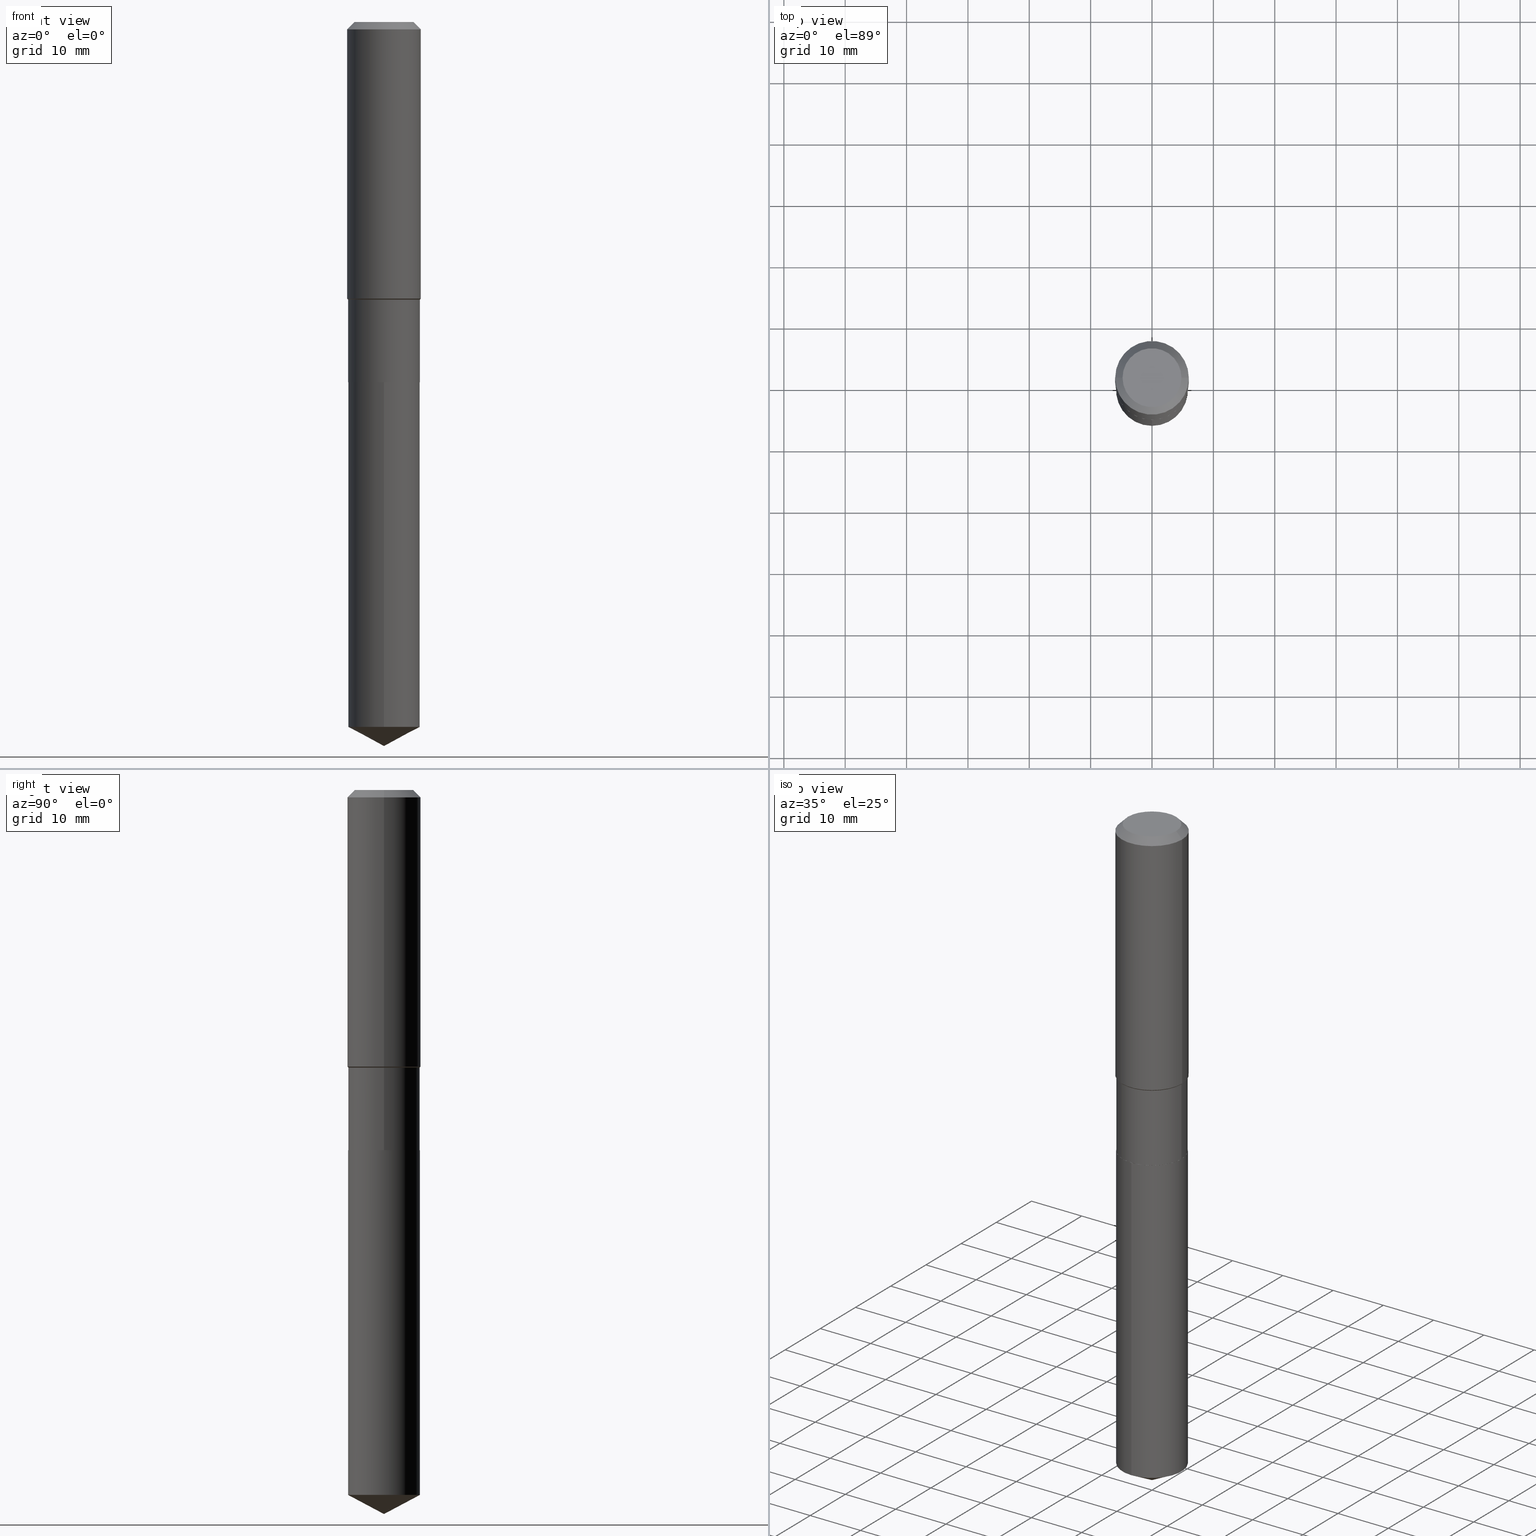
[diagram: canonical four-view strip — front | top / right | iso, engineering-drawing reading convention]
A machine part, canonical four-view strip (front | top / right | iso — engineering-drawing reading convention). The complete STEP part file that produces these views, byte-faithful:
ISO-10303-21;
HEADER;
FILE_DESCRIPTION (( 'STEP AP203' ),
    '1' );
FILE_NAME ('65247.STEP',
    '2024-04-24T21:57:13',
    ( '' ),
    ( '' ),
    'SwSTEP 2.0',
    'SolidWorks 2023',
    '' );
FILE_SCHEMA (( 'CONFIG_CONTROL_DESIGN' ));
ENDSEC;

DATA;
#1 = EDGE_CURVE ( 'NONE', #407, #405, #362, .T. ) ;
#2 = VECTOR ( 'NONE', #368, 39.37007874015748143 ) ;
#3 = EDGE_LOOP ( 'NONE', ( #290, #270, #339, #343 ) ) ;
#4 = CARTESIAN_POINT ( 'NONE',  ( 4.356113584457583395E-29, -6.219375708881294739E-15, -1.781299999999999883 ) ) ;
#5 = DIRECTION ( 'NONE',  ( -2.445468806185136597E-29, 3.491481338843145583E-15, 1.000000000000000000 ) ) ;
#6 = DIRECTION ( 'NONE',  ( -2.445468806185136597E-29, 3.491481338843145583E-15, 1.000000000000000000 ) ) ;
#7 =( NAMED_UNIT ( * ) PLANE_ANGLE_UNIT ( ) SI_UNIT ( $, .RADIAN. ) );
#8 = EDGE_CURVE ( 'NONE', #96, #405, #9, .T. ) ;
#9 = CIRCLE ( 'NONE', #256, 0.2361999999999999933 ) ;
#10 = AXIS2_PLACEMENT_3D ( 'NONE', #191, #167, #415 ) ;
#11 = CARTESIAN_POINT ( 'NONE',  ( 4.356113584457583395E-29, -6.219375708881294739E-15, -1.781299999999999883 ) ) ;
#12 = CARTESIAN_POINT ( 'NONE',  ( -0.2361999999999999933, 1.484438206022545019E-15, -0.04724000000000028177 ) ) ;
#13 = CALENDAR_DATE ( 2024, 24, 4 ) ;
#14 = DIRECTION ( 'NONE',  ( 2.445468806185136597E-29, -3.491481338843145583E-15, -1.000000000000000000 ) ) ;
#15 = CARTESIAN_POINT ( 'NONE',  ( 5.651478411093848855E-29, -8.068813374066508195E-15, -2.310999999999999499 ) ) ;
#16 = ADVANCED_FACE ( 'NONE', ( #42 ), #134, .T. ) ;
#17 = APPROVAL_DATE_TIME ( #435, #77 ) ;
#18 = EDGE_LOOP ( 'NONE', ( #277, #347, #66, #156 ) ) ;
#19 = AXIS2_PLACEMENT_3D ( 'NONE', #165, #391, #283 ) ;
#20 = CARTESIAN_POINT ( 'NONE',  ( -0.2361999999999999933, -1.503554831849177787E-15, -0.04724000000000028177 ) ) ;
#21 = PERSON_AND_ORGANIZATION ( #437, #40 ) ;
#22 = CARTESIAN_POINT ( 'NONE',  ( 1.106141765618037244E-28, -1.579289455312474362E-14, -4.523247317888362318 ) ) ;
#23 = DIRECTION ( 'NONE',  ( -2.445468806185136597E-29, 3.491481338843145583E-15, 1.000000000000000000 ) ) ;
#24 = VERTEX_POINT ( 'NONE', #237 ) ;
#25 = FACE_OUTER_BOUND ( 'NONE', #111, .T. ) ;
#26 = ORIENTED_EDGE ( 'NONE', *, *, #181, .T. ) ;
#27 = CONICAL_SURFACE ( 'NONE', #447, 0.2298000000000000043, 0.7853981633975507526 ) ;
#28 = DIRECTION ( 'NONE',  ( -2.445449566755685960E-29, 3.491508890801159259E-15, 1.000000000000000000 ) ) ;
#29 = ORIENTED_EDGE ( 'NONE', *, *, #313, .T. ) ;
#30 = DIRECTION ( 'NONE',  ( 1.000000000000000000, -6.982962677686267499E-15, 0.000000000000000000 ) ) ;
#31 = EDGE_CURVE ( 'NONE', #141, #373, #108, .T. ) ;
#32 = ORIENTED_EDGE ( 'NONE', *, *, #53, .T. ) ;
#33 = COORDINATED_UNIVERSAL_TIME_OFFSET ( 5, 0, .BEHIND. ) ;
#34 = CIRCLE ( 'NONE', #319, 0.2302999999999999214 ) ;
#35 = VECTOR ( 'NONE', #67, 39.37007874015748143 ) ;
#36 = MECHANICAL_CONTEXT ( 'NONE', #70, 'mechanical' ) ;
#37 = CARTESIAN_POINT ( 'NONE',  ( 5.650255676690757174E-29, -8.067067633397085902E-15, -2.310499999999999776 ) ) ;
#38 = APPROVAL ( #202, 'UNSPECIFIED' ) ;
#39 = ORIENTED_EDGE ( 'NONE', *, *, #411, .F. ) ;
#40 = ORGANIZATION ( 'UNSPECIFIED', 'UNSPECIFIED', '' ) ;
#41 = VERTEX_POINT ( 'NONE', #266 ) ;
#42 = FACE_OUTER_BOUND ( 'NONE', #107, .T. ) ;
#43 = FACE_OUTER_BOUND ( 'NONE', #150, .T. ) ;
#44 = EDGE_CURVE ( 'NONE', #220, #373, #112, .T. ) ;
#45 = CARTESIAN_POINT ( 'NONE',  ( 4.356113584457583395E-29, -6.219375708881294739E-15, -1.781299999999999883 ) ) ;
#46 = PERSON_AND_ORGANIZATION ( #437, #40 ) ;
#47 = CARTESIAN_POINT ( 'NONE',  ( 1.636379920455566968E-15, 0.2302999999999919278, -2.311000000000000387 ) ) ;
#48 = MANIFOLD_SOLID_BREP ( 'Body-Move/Copy2[2]', #50 ) ;
#49 = SECURITY_CLASSIFICATION_LEVEL ( 'unclassified' ) ;
#50 = CLOSED_SHELL ( 'NONE', ( #399, #162, #230, #160, #73, #282, #85, #195, #109, #217, #103, #340 ) ) ;
#51 = DIRECTION ( 'NONE',  ( -2.445468806185136597E-29, 3.491481338843145583E-15, 1.000000000000000000 ) ) ;
#52 = DIRECTION ( 'NONE',  ( -2.445468806185136597E-29, 3.491481338843145583E-15, 1.000000000000000000 ) ) ;
#53 = EDGE_CURVE ( 'NONE', #407, #79, #157, .T. ) ;
#54 = CARTESIAN_POINT ( 'NONE',  ( 0.1889600000000000168, -1.540873453589747738E-15, 3.855188123725863225E-18 ) ) ;
#55 = COORDINATED_UNIVERSAL_TIME_OFFSET ( 5, 0, .BEHIND. ) ;
#56 = CARTESIAN_POINT ( 'NONE',  ( 4.341685318501090243E-29, -6.198775968982119419E-15, -1.775399999999999645 ) ) ;
#57 = CYLINDRICAL_SURFACE ( 'NONE', #192, 0.2302999999999999770 ) ;
#58 = VECTOR ( 'NONE', #369, 39.37007874015748143 ) ;
#59 = PERSON_AND_ORGANIZATION ( #437, #40 ) ;
#60 = CARTESIAN_POINT ( 'NONE',  ( 0.2302999999999999770, -1.608176304671147069E-15, 1.122983511465803858E-29 ) ) ;
#61 = ORIENTED_EDGE ( 'NONE', *, *, #464, .T. ) ;
#62 = ORIENTED_EDGE ( 'NONE', *, *, #302, .F. ) ;
#63 = EDGE_CURVE ( 'NONE', #373, #220, #452, .T. ) ;
#64 = EDGE_LOOP ( 'NONE', ( #262, #98 ) ) ;
#65 = CARTESIAN_POINT ( 'NONE',  ( 5.651478411093848855E-29, -8.068813374066508195E-15, -2.310999999999999499 ) ) ;
#66 = ORIENTED_EDGE ( 'NONE', *, *, #8, .F. ) ;
#67 = DIRECTION ( 'NONE',  ( 0.7071067811866199593, -2.468850131083015945E-15, 0.7071067811864750752 ) ) ;
#68 = CIRCLE ( 'NONE', #102, 0.2298000000000000043 ) ;
#69 = EDGE_CURVE ( 'NONE', #403, #83, #34, .T. ) ;
#70 = APPLICATION_CONTEXT ( 'configuration controlled 3d designs of mechanical parts and assemblies' ) ;
#71 = DIRECTION ( 'NONE',  ( -2.445468806185136597E-29, 3.491481338843145583E-15, 1.000000000000000000 ) ) ;
#72 = CARTESIAN_POINT ( 'NONE',  ( 5.651478411093848855E-29, -8.068813374066508195E-15, -2.310999999999999499 ) ) ;
#73 = ADVANCED_FACE ( 'NONE', ( #238 ), #430, .T. ) ;
#74 = VECTOR ( 'NONE', #310, 39.37007874015748143 ) ;
#75 = LOCAL_TIME ( 17, 57, 13.00000000000000000, #115 ) ;
#76 = LINE ( 'NONE', #236, #205 ) ;
#77 = APPROVAL ( #133, 'UNSPECIFIED' ) ;
#78 = ORIENTED_EDGE ( 'NONE', *, *, #207, .F. ) ;
#79 = VERTEX_POINT ( 'NONE', #54 ) ;
#80 = DIRECTION ( 'NONE',  ( -2.445468806185136597E-29, 3.491481338843145583E-15, 1.000000000000000000 ) ) ;
#81 = VECTOR ( 'NONE', #358, 39.37007874015748143 ) ;
#82 = VECTOR ( 'NONE', #320, 39.37007874015748143 ) ;
#83 = VERTEX_POINT ( 'NONE', #462 ) ;
#84 = PRODUCT_DEFINITION_FORMATION_WITH_SPECIFIED_SOURCE ( 'ANY', '', #321, .NOT_KNOWN. ) ;
#85 = ADVANCED_FACE ( 'NONE', ( #136 ), #275, .T. ) ;
#86 = DIRECTION ( 'NONE',  ( -1.000000000000000000, 6.982962677686266711E-15, 0.000000000000000000 ) ) ;
#87 = LINE ( 'NONE', #161, #74 ) ;
#88 = DIRECTION ( 'NONE',  ( -2.445468806185136597E-29, 3.491481338843145583E-15, 1.000000000000000000 ) ) ;
#89 = PERSON_AND_ORGANIZATION ( #437, #40 ) ;
#90 = DIRECTION ( 'NONE',  ( 1.000000000000000000, -6.982962677686265922E-15, 4.876176775795935793E-29 ) ) ;
#91 = EDGE_CURVE ( 'NONE', #222, #83, #247, .T. ) ;
#92 = APPROVAL_ROLE ( '' ) ;
#93 = AXIS2_PLACEMENT_3D ( 'NONE', #338, #255, #305 ) ;
#94 = DIRECTION ( 'NONE',  ( -6.982962677686265922E-15, -1.000000000000000000, 3.541896320645553375E-15 ) ) ;
#95 = DIRECTION ( 'NONE',  ( -0.7071067811865453523, 2.468850131082234184E-15, -0.7071067811865496822 ) ) ;
#96 = VERTEX_POINT ( 'NONE', #457 ) ;
#97 = FACE_OUTER_BOUND ( 'NONE', #64, .T. ) ;
#98 = ORIENTED_EDGE ( 'NONE', *, *, #350, .F. ) ;
#99 = DIRECTION ( 'NONE',  ( -2.445468806185136597E-29, 3.491481338843145583E-15, 1.000000000000000000 ) ) ;
#100 = APPROVAL_DATE_TIME ( #175, #126 ) ;
#101 = LINE ( 'NONE', #221, #58 ) ;
#102 = AXIS2_PLACEMENT_3D ( 'NONE', #484, #409, #30 ) ;
#103 = ADVANCED_FACE ( 'NONE', ( #97 ), #278, .F. ) ;
#104 = CARTESIAN_POINT ( 'NONE',  ( 1.636379920455621202E-15, 0.2302999999999842118, -4.523247317888362318 ) ) ;
#105 = CC_DESIGN_PERSON_AND_ORGANIZATION_ASSIGNMENT ( #170, #125, ( #321 ) ) ;
#106 = CARTESIAN_POINT ( 'NONE',  ( 0.000000000000000000, 0.000000000000000000, 0.000000000000000000 ) ) ;
#107 = EDGE_LOOP ( 'NONE', ( #398, #239, #370, #198 ) ) ;
#108 = LINE ( 'NONE', #114, #298 ) ;
#109 = ADVANCED_FACE ( 'NONE', ( #123 ), #388, .T. ) ;
#110 = CARTESIAN_POINT ( 'NONE',  ( 5.651478411093848855E-29, -8.068813374066508195E-15, -2.310999999999999499 ) ) ;
#111 = EDGE_LOOP ( 'NONE', ( #301, #164, #336, #367 ) ) ;
#112 = CIRCLE ( 'NONE', #240, 0.2303000000000000047 ) ;
#113 = AXIS2_PLACEMENT_3D ( 'NONE', #130, #14, #86 ) ;
#114 = CARTESIAN_POINT ( 'NONE',  ( -1.608176304671090468E-15, -0.2303000000000080538, -2.310999999999998611 ) ) ;
#115 = COORDINATED_UNIVERSAL_TIME_OFFSET ( 5, 0, .BEHIND. ) ;
#116 = DIRECTION ( 'NONE',  ( -2.445449566755685960E-29, 3.491508890801159259E-15, 1.000000000000000000 ) ) ;
#117 = EDGE_CURVE ( 'NONE', #410, #222, #306, .T. ) ;
#118 = VECTOR ( 'NONE', #390, 39.37007874015748143 ) ;
#119 = VECTOR ( 'NONE', #318, 39.37007874015747433 ) ;
#120 = LOCAL_TIME ( 17, 57, 13.00000000000000000, #33 ) ;
#121 = ORIENTED_EDGE ( 'NONE', *, *, #31, .F. ) ;
#122 = EDGE_CURVE ( 'NONE', #79, #96, #386, .T. ) ;
#123 = FACE_OUTER_BOUND ( 'NONE', #149, .T. ) ;
#124 = CLOSED_SHELL ( 'NONE', ( #219, #131, #424, #16, #449 ) ) ;
#125 = PERSON_AND_ORGANIZATION_ROLE ( 'design_owner' ) ;
#126 = APPROVAL ( #471, 'UNSPECIFIED' ) ;
#127 = EDGE_LOOP ( 'NONE', ( #417, #61, #227, #135 ) ) ;
#128 = DIRECTION ( 'NONE',  ( 1.000000000000000000, -6.982962677686268288E-15, 0.000000000000000000 ) ) ;
#129 = APPROVAL_ROLE ( '' ) ;
#130 = CARTESIAN_POINT ( 'NONE',  ( 1.155239464041865506E-30, -1.649375784469511859E-16, -0.04724000000000028177 ) ) ;
#131 = ADVANCED_FACE ( 'NONE', ( #43 ), #311, .T. ) ;
#132 = DIMENSIONAL_EXPONENTS ( 1.000000000000000000, 0.000000000000000000, 0.000000000000000000, 0.000000000000000000, 0.000000000000000000, 0.000000000000000000, 0.000000000000000000 ) ;
#133 = APPROVAL_STATUS ( 'not_yet_approved' ) ;
#134 = CYLINDRICAL_SURFACE ( 'NONE', #289, 0.2303000000000000047 ) ;
#135 = ORIENTED_EDGE ( 'NONE', *, *, #379, .F. ) ;
#136 = FACE_OUTER_BOUND ( 'NONE', #3, .T. ) ;
#137 = VECTOR ( 'NONE', #354, 39.37007874015748143 ) ;
#138 = AXIS2_PLACEMENT_3D ( 'NONE', #210, #80, #199 ) ;
#139 = VECTOR ( 'NONE', #337, 39.37007874015748854 ) ;
#140 = DIRECTION ( 'NONE',  ( -6.982962677686265922E-15, -1.000000000000000000, 3.558638289619100968E-15 ) ) ;
#141 = VERTEX_POINT ( 'NONE', #243 ) ;
#142 = DIRECTION ( 'NONE',  ( -2.445468806185136597E-29, 3.491481338843145583E-15, 1.000000000000000000 ) ) ;
#143 = ORIENTED_EDGE ( 'NONE', *, *, #487, .F. ) ;
#144 = EDGE_CURVE ( 'NONE', #264, #220, #322, .T. ) ;
#145 = DIRECTION ( 'NONE',  ( -2.445468806185136597E-29, 3.491481338843145583E-15, 1.000000000000000000 ) ) ;
#146 = UNCERTAINTY_MEASURE_WITH_UNIT (LENGTH_MEASURE( 1.000000000000000082E-05 ), #406, 'distance_accuracy_value', 'NONE');
#147 = CARTESIAN_POINT ( 'NONE',  ( -9.427742298522546243E-47, 1.346031739168365344E-32, 3.855188123715862256E-18 ) ) ;
#148 = CIRCLE ( 'NONE', #383, 0.2298000000000000043 ) ;
#149 = EDGE_LOOP ( 'NONE', ( #489, #250, #281, #381 ) ) ;
#150 = EDGE_LOOP ( 'NONE', ( #78, #159, #296 ) ) ;
#151 = DIRECTION ( 'NONE',  ( 1.000000000000000000, -6.982962677686267499E-15, 0.000000000000000000 ) ) ;
#152 = LINE ( 'NONE', #474, #139 ) ;
#153 = ORIENTED_EDGE ( 'NONE', *, *, #252, .F. ) ;
#154 = ORIENTED_EDGE ( 'NONE', *, *, #267, .T. ) ;
#155 = CARTESIAN_POINT ( 'NONE',  ( 0.2362000000000001043, -1.649375784469496920E-15, 1.151752954443000508E-29 ) ) ;
#156 = ORIENTED_EDGE ( 'NONE', *, *, #416, .F. ) ;
#157 = CIRCLE ( 'NONE', #138, 0.1889600000000000168 ) ;
#158 = APPROVAL_PERSON_ORGANIZATION ( #46, #38, #129 ) ;
#159 = ORIENTED_EDGE ( 'NONE', *, *, #302, .T. ) ;
#160 = ADVANCED_FACE ( 'NONE', ( #203 ), #418, .T. ) ;
#161 = CARTESIAN_POINT ( 'NONE',  ( 0.2302999999999999214, -7.827552013552441413E-15, -1.781299999999999883 ) ) ;
#162 = ADVANCED_FACE ( 'NONE', ( #465 ), #224, .T. ) ;
#163 = DIRECTION ( 'NONE',  ( -2.445449566755685960E-29, 3.491508890801159259E-15, 1.000000000000000000 ) ) ;
#164 = ORIENTED_EDGE ( 'NONE', *, *, #350, .T. ) ;
#165 = CARTESIAN_POINT ( 'NONE',  ( 1.155239464041865506E-30, -1.649375784469511859E-16, -0.04724000000000028177 ) ) ;
#166 = MANIFOLD_SOLID_BREP ( 'Body-Move/Copy2[1]', #124 ) ;
#167 = DIRECTION ( 'NONE',  ( 2.445449566755685400E-29, -3.491508890801159654E-15, -1.000000000000000000 ) ) ;
#168 = LINE ( 'NONE', #324, #119 ) ;
#169 = AXIS2_PLACEMENT_3D ( 'NONE', #443, #185, #436 ) ;
#170 = PERSON_AND_ORGANIZATION ( #437, #40 ) ;
#171 = DIRECTION ( 'NONE',  ( 1.000000000000000000, -6.982962677686268288E-15, 0.000000000000000000 ) ) ;
#172 = CARTESIAN_POINT ( 'NONE',  ( 1.155239464041865506E-30, -1.649375784469511859E-16, -0.04724000000000028177 ) ) ;
#173 = DIRECTION ( 'NONE',  ( -1.000000000000000000, 6.982962677686265922E-15, -4.876176775795935793E-29 ) ) ;
#174 = DIRECTION ( 'NONE',  ( -2.445449566755685960E-29, 3.491508890801159259E-15, 1.000000000000000000 ) ) ;
#175 = DATE_AND_TIME ( #13, #187 ) ;
#176 = CARTESIAN_POINT ( 'NONE',  ( 5.650255676690757174E-29, -8.067067633397085902E-15, -2.310499999999999776 ) ) ;
#177 = COORDINATED_UNIVERSAL_TIME_OFFSET ( 5, 0, .BEHIND. ) ;
#178 = AXIS2_PLACEMENT_3D ( 'NONE', #4, #253, #128 ) ;
#179 = CIRCLE ( 'NONE', #341, 0.2303000000000000047 ) ;
#180 = CYLINDRICAL_SURFACE ( 'NONE', #279, 0.2362000000000001043 ) ;
#181 = EDGE_CURVE ( 'NONE', #272, #349, #427, .T. ) ;
#182 = DIRECTION ( 'NONE',  ( -2.445468806185136877E-29, 3.491481338843145188E-15, 1.000000000000000000 ) ) ;
#183 = CARTESIAN_POINT ( 'NONE',  ( 0.000000000000000000, 0.000000000000000000, 0.000000000000000000 ) ) ;
#184 = DIRECTION ( 'NONE',  ( -6.982962677686265922E-15, -1.000000000000000000, 2.372425526412734110E-15 ) ) ;
#185 = DIRECTION ( 'NONE',  ( -2.445468806185136597E-29, 3.491481338843145583E-15, 1.000000000000000000 ) ) ;
#186 = CIRCLE ( 'NONE', #460, 0.2361999999999999933 ) ;
#187 = LOCAL_TIME ( 17, 57, 13.00000000000000000, #177 ) ;
#188 = CARTESIAN_POINT ( 'NONE',  ( -1.608176304671090468E-15, -0.2303000000000080538, -2.310999999999998611 ) ) ;
#189 = ORIENTED_EDGE ( 'NONE', *, *, #416, .T. ) ;
#190 = DIRECTION ( 'NONE',  ( 1.000000000000000000, -6.982962677686269866E-15, 0.000000000000000000 ) ) ;
#191 = CARTESIAN_POINT ( 'NONE',  ( 5.651478411093848855E-29, -8.068813374066508195E-15, -2.310999999999999499 ) ) ;
#192 = AXIS2_PLACEMENT_3D ( 'NONE', #106, #142, #265 ) ;
#193 = PRODUCT_RELATED_PRODUCT_CATEGORY ( 'detail', '', ( #321 ) ) ;
#194 =( NAMED_UNIT ( * ) SI_UNIT ( $, .STERADIAN. ) SOLID_ANGLE_UNIT ( ) );
#195 = ADVANCED_FACE ( 'NONE', ( #384 ), #351, .T. ) ;
#196 = AXIS2_PLACEMENT_3D ( 'NONE', #11, #419, #171 ) ;
#197 = CC_DESIGN_APPROVAL ( #77, ( #84 ) ) ;
#198 = ORIENTED_EDGE ( 'NONE', *, *, #44, .F. ) ;
#199 = DIRECTION ( 'NONE',  ( 1.000000000000000000, -6.982962677686266711E-15, 4.876185090822587894E-29 ) ) ;
#200 = CC_DESIGN_PERSON_AND_ORGANIZATION_ASSIGNMENT ( #392, #425, ( #84 ) ) ;
#201 = CARTESIAN_POINT ( 'NONE',  ( 5.651478411093848855E-29, -8.068813374066508195E-15, -2.310999999999999499 ) ) ;
#202 = APPROVAL_STATUS ( 'not_yet_approved' ) ;
#203 = FACE_OUTER_BOUND ( 'NONE', #269, .T. ) ;
#204 = AXIS2_PLACEMENT_3D ( 'NONE', #183, #5, #421 ) ;
#205 = VECTOR ( 'NONE', #280, 39.37007874015748143 ) ;
#206 = DATE_AND_TIME ( #254, #365 ) ;
#207 = EDGE_CURVE ( 'NONE', #360, #141, #168, .T. ) ;
#208 = CC_DESIGN_SECURITY_CLASSIFICATION ( #328, ( #84 ) ) ;
#209 = PLANE ( 'NONE',  #263 ) ;
#210 = CARTESIAN_POINT ( 'NONE',  ( -9.427742298522546243E-47, 1.346031739168365344E-32, 3.855188123715862256E-18 ) ) ;
#211 = DIRECTION ( 'NONE',  ( 2.438088387897960049E-29, -3.491481338843145188E-15, -1.000000000000000000 ) ) ;
#212 = ORIENTED_EDGE ( 'NONE', *, *, #8, .T. ) ;
#213 = DIRECTION ( 'NONE',  ( 1.000000000000000000, -6.982962677686266711E-15, 0.000000000000000000 ) ) ;
#214 = CALENDAR_DATE ( 2024, 24, 4 ) ;
#215 = CONICAL_SURFACE ( 'NONE', #438, 74.04434902938369589, 1.082104136236487379 ) ;
#216 = LINE ( 'NONE', #400, #35 ) ;
#217 = ADVANCED_FACE ( 'NONE', ( #249 ), #209, .F. ) ;
#218 = DIRECTION ( 'NONE',  ( -6.982962677686265922E-15, -1.000000000000000000, 2.372425526412734110E-15 ) ) ;
#219 = ADVANCED_FACE ( 'NONE', ( #361 ), #326, .T. ) ;
#220 = VERTEX_POINT ( 'NONE', #292 ) ;
#221 = CARTESIAN_POINT ( 'NONE',  ( -0.2302999999999999214, -4.582995788425784372E-15, -1.781299999999999883 ) ) ;
#222 = VERTEX_POINT ( 'NONE', #332 ) ;
#223 = DIRECTION ( 'NONE',  ( 1.000000000000000000, -6.982962677686266711E-15, 4.876185090822587894E-29 ) ) ;
#224 = CONICAL_SURFACE ( 'NONE', #113, 0.2361999999999999933, 0.7853981633974452814 ) ;
#225 = DIRECTION ( 'NONE',  ( -2.445468806185136597E-29, 3.491481338843145583E-15, 1.000000000000000000 ) ) ;
#226 = DATE_AND_TIME ( #284, #75 ) ;
#227 = ORIENTED_EDGE ( 'NONE', *, *, #276, .T. ) ;
#228 = PRODUCT_DEFINITION_SHAPE ( 'NONE', 'NONE',  #286 ) ;
#229 = DIRECTION ( 'NONE',  ( 0.000000000000000000, 0.000000000000000000, 1.000000000000000000 ) ) ;
#230 = ADVANCED_FACE ( 'NONE', ( #303 ), #180, .T. ) ;
#231 = DIRECTION ( 'NONE',  ( -6.982962677686265922E-15, -1.000000000000000000, 3.558638289619100968E-15 ) ) ;
#232 = LENGTH_MEASURE_WITH_UNIT ( LENGTH_MEASURE( 0.02539999999999999897 ), #450 );
#233 = CARTESIAN_POINT ( 'NONE',  ( 5.651478411093848855E-29, -8.068813374066508195E-15, -2.310999999999999499 ) ) ;
#234 = ORIENTED_EDGE ( 'NONE', *, *, #117, .F. ) ;
#235 = ORIENTED_EDGE ( 'NONE', *, *, #1, .F. ) ;
#236 = CARTESIAN_POINT ( 'NONE',  ( -0.2362000000000001043, 1.678301941865357380E-15, -1.161852468318209317E-29 ) ) ;
#237 = CARTESIAN_POINT ( 'NONE',  ( 0.2298000000000000043, -9.673498197398812651E-15, -2.310999999999999499 ) ) ;
#238 = FACE_OUTER_BOUND ( 'NONE', #330, .T. ) ;
#239 = ORIENTED_EDGE ( 'NONE', *, *, #333, .T. ) ;
#240 = AXIS2_PLACEMENT_3D ( 'NONE', #72, #352, #323 ) ;
#241 = CIRCLE ( 'NONE', #453, 0.1889600000000000168 ) ;
#242 = APPROVAL_PERSON_ORGANIZATION ( #432, #77, #287 ) ;
#243 = CARTESIAN_POINT ( 'NONE',  ( -1.608176304671036628E-15, -0.2303000000000157976, -4.523247317888361430 ) ) ;
#244 = DIRECTION ( 'NONE',  ( -6.982962677686265922E-15, -1.000000000000000000, 3.541896320645553375E-15 ) ) ;
#245 = DIRECTION ( 'NONE',  ( -2.438088387897960049E-29, 3.491481338843145188E-15, 1.000000000000000000 ) ) ;
#246 = PERSON_AND_ORGANIZATION_ROLE ( 'classification_officer' ) ;
#247 = LINE ( 'NONE', #431, #137 ) ;
#248 = AXIS2_PLACEMENT_3D ( 'NONE', #22, #28, #184 ) ;
#249 = FACE_OUTER_BOUND ( 'NONE', #378, .T. ) ;
#250 = ORIENTED_EDGE ( 'NONE', *, *, #53, .F. ) ;
#251 = DATE_TIME_ROLE ( 'classification_date' ) ;
#252 = EDGE_CURVE ( 'NONE', #349, #272, #389, .T. ) ;
#253 = DIRECTION ( 'NONE',  ( -2.445468806185136597E-29, 3.491481338843145583E-15, 1.000000000000000000 ) ) ;
#254 = CALENDAR_DATE ( 2024, 24, 4 ) ;
#255 = DIRECTION ( 'NONE',  ( -2.445468806185136597E-29, 3.491481338843145583E-15, 1.000000000000000000 ) ) ;
#256 = AXIS2_PLACEMENT_3D ( 'NONE', #172, #52, #355 ) ;
#257 = CIRCLE ( 'NONE', #248, 0.2303000000000000047 ) ;
#258 = CARTESIAN_POINT ( 'NONE',  ( -0.2362000000000002153, -4.520474027116760658E-15, -1.775399999999999645 ) ) ;
#259 = CARTESIAN_POINT ( 'NONE',  ( -0.2298000000000000043, -6.435986167289797937E-15, -2.310999999999999499 ) ) ;
#260 = EDGE_LOOP ( 'NONE', ( #39, #26, #189, #385 ) ) ;
#261 = CARTESIAN_POINT ( 'NONE',  ( 0.000000000000000000, 0.000000000000000000, 0.000000000000000000 ) ) ;
#262 = ORIENTED_EDGE ( 'NONE', *, *, #455, .F. ) ;
#263 = AXIS2_PLACEMENT_3D ( 'NONE', #466, #211, #173 ) ;
#264 = VERTEX_POINT ( 'NONE', #104 ) ;
#265 = DIRECTION ( 'NONE',  ( 1.000000000000000000, -6.982962677686266711E-15, 4.876176775795935793E-29 ) ) ;
#266 = CARTESIAN_POINT ( 'NONE',  ( -0.2298000000000000043, -6.433336940115686736E-15, -2.310999999999999499 ) ) ;
#267 = EDGE_CURVE ( 'NONE', #83, #272, #101, .T. ) ;
#268 = PERSON_AND_ORGANIZATION_ROLE ( 'creator' ) ;
#269 = EDGE_LOOP ( 'NONE', ( #344, #154, #153, #143 ) ) ;
#270 = ORIENTED_EDGE ( 'NONE', *, *, #379, .T. ) ;
#271 = FACE_OUTER_BOUND ( 'NONE', #446, .T. ) ;
#272 = VERTEX_POINT ( 'NONE', #258 ) ;
#273 = CC_DESIGN_DATE_AND_TIME_ASSIGNMENT ( #206, #251, ( #328 ) ) ;
#274 = LINE ( 'NONE', #155, #82 ) ;
#275 = CONICAL_SURFACE ( 'NONE', #178, 0.2302999999999999214, 0.7853981633974425058 ) ;
#276 = EDGE_CURVE ( 'NONE', #410, #403, #396, .T. ) ;
#277 = ORIENTED_EDGE ( 'NONE', *, *, #252, .T. ) ;
#278 = PLANE ( 'NONE',  #348 ) ;
#279 = AXIS2_PLACEMENT_3D ( 'NONE', #261, #329, #300 ) ;
#280 = DIRECTION ( 'NONE',  ( -2.445468806185136877E-29, 3.491481338843145188E-15, 1.000000000000000000 ) ) ;
#281 = ORIENTED_EDGE ( 'NONE', *, *, #1, .T. ) ;
#282 = ADVANCED_FACE ( 'NONE', ( #473 ), #57, .T. ) ;
#283 = DIRECTION ( 'NONE',  ( -1.000000000000000000, 6.982962677686266711E-15, 0.000000000000000000 ) ) ;
#284 = CALENDAR_DATE ( 2024, 24, 4 ) ;
#285 = CARTESIAN_POINT ( 'NONE',  ( 0.000000000000000000, 0.000000000000000000, 0.000000000000000000 ) ) ;
#286 = PRODUCT_DEFINITION ( 'UNKNOWN', '', #84, #444 ) ;
#287 = APPROVAL_ROLE ( '' ) ;
#288 = DIRECTION ( 'NONE',  ( 1.000000000000000000, -6.982962677686269866E-15, 0.000000000000000000 ) ) ;
#289 = AXIS2_PLACEMENT_3D ( 'NONE', #472, #163, #467 ) ;
#290 = ORIENTED_EDGE ( 'NONE', *, *, #267, .F. ) ;
#291 = EDGE_CURVE ( 'NONE', #141, #264, #179, .T. ) ;
#292 = CARTESIAN_POINT ( 'NONE',  ( 1.636379920455621399E-15, 0.2302999999999919001, -2.311000000000000387 ) ) ;
#293 = CC_DESIGN_DATE_AND_TIME_ASSIGNMENT ( #359, #331, ( #286 ) ) ;
#294 = DIRECTION ( 'NONE',  ( 1.000000000000000000, -6.982962677686266711E-15, 0.000000000000000000 ) ) ;
#295 = DIRECTION ( 'NONE',  ( 1.000000000000000000, -6.982962677686267499E-15, 0.000000000000000000 ) ) ;
#296 = ORIENTED_EDGE ( 'NONE', *, *, #291, .F. ) ;
#297 = COORDINATED_UNIVERSAL_TIME_OFFSET ( 5, 0, .BEHIND. ) ;
#298 = VECTOR ( 'NONE', #408, 39.37007874015748143 ) ;
#299 = AXIS2_PLACEMENT_3D ( 'NONE', #37, #342, #190 ) ;
#300 = DIRECTION ( 'NONE',  ( 1.000000000000000000, -6.982962677686266711E-15, 4.876176775795935793E-29 ) ) ;
#301 = ORIENTED_EDGE ( 'NONE', *, *, #313, .F. ) ;
#302 = EDGE_CURVE ( 'NONE', #360, #264, #152, .T. ) ;
#303 = FACE_OUTER_BOUND ( 'NONE', #18, .T. ) ;
#304 = CC_DESIGN_PERSON_AND_ORGANIZATION_ASSIGNMENT ( #59, #246, ( #328 ) ) ;
#305 = DIRECTION ( 'NONE',  ( 1.000000000000000000, -6.982962677686268288E-15, 0.000000000000000000 ) ) ;
#306 = CIRCLE ( 'NONE', #413, 0.2303000000000000047 ) ;
#307 = ORIENTED_EDGE ( 'NONE', *, *, #63, .T. ) ;
#308 = DIRECTION ( 'NONE',  ( 1.000000000000000000, -6.982962677686268288E-15, 0.000000000000000000 ) ) ;
#309 = ORIENTED_EDGE ( 'NONE', *, *, #91, .T. ) ;
#310 = DIRECTION ( 'NONE',  ( 0.7071067811865434649, -2.468850131082213673E-15, 0.7071067811865516806 ) ) ;
#311 = CONICAL_SURFACE ( 'NONE', #327, 74.04434902938369589, 1.082104136236487379 ) ;
#312 = AXIS2_PLACEMENT_3D ( 'NONE', #15, #469, #140 ) ;
#313 = EDGE_CURVE ( 'NONE', #41, #222, #439, .T. ) ;
#314 = ORIENTED_EDGE ( 'NONE', *, *, #207, .T. ) ;
#315 = ORIENTED_EDGE ( 'NONE', *, *, #291, .T. ) ;
#316 = CARTESIAN_POINT ( 'NONE',  ( 0.2361999999999999933, -1.785387205520586782E-15, -0.04724000000000028177 ) ) ;
#317 = EDGE_CURVE ( 'NONE', #405, #96, #186, .T. ) ;
#318 = DIRECTION ( 'NONE',  ( -6.165590087286837607E-15, -0.8829475928589267664, 0.4694715627858912499 ) ) ;
#319 = AXIS2_PLACEMENT_3D ( 'NONE', #45, #225, #308 ) ;
#320 = DIRECTION ( 'NONE',  ( -2.445468806185136877E-29, 3.491481338843145188E-15, 1.000000000000000000 ) ) ;
#321 = PRODUCT ( '65247', '65247', '', ( #36 ) ) ;
#322 = LINE ( 'NONE', #47, #81 ) ;
#323 = DIRECTION ( 'NONE',  ( -6.982962677686265922E-15, -1.000000000000000000, 3.558638289619100968E-15 ) ) ;
#324 = CARTESIAN_POINT ( 'NONE',  ( 1.136082505227688909E-28, -1.622050285399494493E-14, -4.645699999999999719 ) ) ;
#325 = ORIENTED_EDGE ( 'NONE', *, *, #63, .F. ) ;
#326 = CYLINDRICAL_SURFACE ( 'NONE', #312, 0.2303000000000000047 ) ;
#327 = AXIS2_PLACEMENT_3D ( 'NONE', #387, #426, #94 ) ;
#328 = SECURITY_CLASSIFICATION ( '', '', #49 ) ;
#329 = DIRECTION ( 'NONE',  ( -2.445468806185136597E-29, 3.491481338843145583E-15, 1.000000000000000000 ) ) ;
#330 = EDGE_LOOP ( 'NONE', ( #442, #309, #483, #433 ) ) ;
#331 = DATE_TIME_ROLE ( 'creation_date' ) ;
#332 = CARTESIAN_POINT ( 'NONE',  ( -0.2303000000000000047, -5.506841750683680348E-15, -2.310499999999999776 ) ) ;
#333 = EDGE_CURVE ( 'NONE', #264, #141, #257, .T. ) ;
#334 = DIRECTION ( 'NONE',  ( 1.000000000000000000, -6.982962677686267499E-15, 0.000000000000000000 ) ) ;
#335 = ORIENTED_EDGE ( 'NONE', *, *, #455, .T. ) ;
#336 = ORIENTED_EDGE ( 'NONE', *, *, #357, .T. ) ;
#337 = DIRECTION ( 'NONE',  ( 6.273719981627766076E-15, 0.8829475928589298750, 0.4694715627858848661 ) ) ;
#338 = CARTESIAN_POINT ( 'NONE',  ( 4.356113584457583395E-29, -6.219375708881294739E-15, -1.781299999999999883 ) ) ;
#339 = ORIENTED_EDGE ( 'NONE', *, *, #487, .T. ) ;
#340 = ADVANCED_FACE ( 'NONE', ( #25 ), #27, .T. ) ;
#341 = AXIS2_PLACEMENT_3D ( 'NONE', #482, #404, #218 ) ;
#342 = DIRECTION ( 'NONE',  ( -2.445468806185136597E-29, 3.491481338843145583E-15, 1.000000000000000000 ) ) ;
#343 = ORIENTED_EDGE ( 'NONE', *, *, #181, .F. ) ;
#344 = ORIENTED_EDGE ( 'NONE', *, *, #69, .T. ) ;
#345 = ORIENTED_EDGE ( 'NONE', *, *, #371, .T. ) ;
#346 = APPLICATION_PROTOCOL_DEFINITION ( 'international standard', 'config_control_design', 1994, #70 ) ;
#347 = ORIENTED_EDGE ( 'NONE', *, *, #411, .T. ) ;
#348 = AXIS2_PLACEMENT_3D ( 'NONE', #201, #245, #90 ) ;
#349 = VERTEX_POINT ( 'NONE', #372 ) ;
#350 = EDGE_CURVE ( 'NONE', #41, #24, #148, .T. ) ;
#351 = CYLINDRICAL_SURFACE ( 'NONE', #486, 0.2362000000000001043 ) ;
#352 = DIRECTION ( 'NONE',  ( -2.445449566755685960E-29, 3.491508890801159259E-15, 1.000000000000000000 ) ) ;
#353 = FACE_OUTER_BOUND ( 'NONE', #441, .T. ) ;
#354 = DIRECTION ( 'NONE',  ( -2.445468806185136877E-29, 3.491481338843145188E-15, 1.000000000000000000 ) ) ;
#355 = DIRECTION ( 'NONE',  ( 1.000000000000000000, -6.982962677686266711E-15, 0.000000000000000000 ) ) ;
#356 = ORIENTED_EDGE ( 'NONE', *, *, #357, .F. ) ;
#357 = EDGE_CURVE ( 'NONE', #24, #410, #216, .T. ) ;
#358 = DIRECTION ( 'NONE',  ( -2.445449566755685960E-29, 3.491508890801159654E-15, 1.000000000000000000 ) ) ;
#359 = DATE_AND_TIME ( #214, #120 ) ;
#360 = VERTEX_POINT ( 'NONE', #476 ) ;
#361 = FACE_OUTER_BOUND ( 'NONE', #375, .T. ) ;
#362 = LINE ( 'NONE', #12, #459 ) ;
#363 = CARTESIAN_POINT ( 'NONE',  ( 0.2302999999999999214, -7.827552013552441413E-15, -1.781299999999999883 ) ) ;
#364 = CIRCLE ( 'NONE', #299, 0.2303000000000000047 ) ;
#365 = LOCAL_TIME ( 17, 57, 13.00000000000000000, #297 ) ;
#366 = CARTESIAN_POINT ( 'NONE',  ( 0.2303000000000000047, -9.675243938068234943E-15, -2.310499999999999776 ) ) ;
#367 = ORIENTED_EDGE ( 'NONE', *, *, #464, .F. ) ;
#368 = DIRECTION ( 'NONE',  ( -0.7071067811866199593, 7.493145998870616062E-15, 0.7071067811864750752 ) ) ;
#369 = DIRECTION ( 'NONE',  ( -0.7071067811865434649, 7.493145998870339961E-15, 0.7071067811865516806 ) ) ;
#370 = ORIENTED_EDGE ( 'NONE', *, *, #31, .T. ) ;
#371 = EDGE_CURVE ( 'NONE', #79, #407, #241, .T. ) ;
#372 = CARTESIAN_POINT ( 'NONE',  ( 0.2362000000000002153, -7.848151753451617522E-15, -1.775399999999999645 ) ) ;
#373 = VERTEX_POINT ( 'NONE', #188 ) ;
#374 = PERSON_AND_ORGANIZATION ( #437, #40 ) ;
#375 = EDGE_LOOP ( 'NONE', ( #315, #451, #325, #121 ) ) ;
#376 = AXIS2_PLACEMENT_3D ( 'NONE', #110, #71, #295 ) ;
#377 = CC_DESIGN_APPROVAL ( #126, ( #328 ) ) ;
#378 = EDGE_LOOP ( 'NONE', ( #32, #345 ) ) ;
#379 = EDGE_CURVE ( 'NONE', #83, #403, #479, .T. ) ;
#380 = PLANE ( 'NONE',  #10 ) ;
#381 = ORIENTED_EDGE ( 'NONE', *, *, #317, .T. ) ;
#382 = AXIS2_PLACEMENT_3D ( 'NONE', #233, #174, #231 ) ;
#383 = AXIS2_PLACEMENT_3D ( 'NONE', #65, #480, #151 ) ;
#384 = FACE_OUTER_BOUND ( 'NONE', #260, .T. ) ;
#385 = ORIENTED_EDGE ( 'NONE', *, *, #317, .F. ) ;
#386 = LINE ( 'NONE', #316, #118 ) ;
#387 = CARTESIAN_POINT ( 'NONE',  ( -8.491667248365701221E-28, 1.212405407713815652E-13, 34.72437874015748349 ) ) ;
#388 = CONICAL_SURFACE ( 'NONE', #19, 0.2361999999999999933, 0.7853981633974452814 ) ;
#389 = CIRCLE ( 'NONE', #169, 0.2362000000000002153 ) ;
#390 = DIRECTION ( 'NONE',  ( 0.7071067811865453523, -7.319954787623248157E-15, -0.7071067811865496822 ) ) ;
#391 = DIRECTION ( 'NONE',  ( 2.445468806185136597E-29, -3.491481338843145583E-15, -1.000000000000000000 ) ) ;
#392 = PERSON_AND_ORGANIZATION ( #437, #40 ) ;
#393 = CARTESIAN_POINT ( 'NONE',  ( -0.1889600000000000168, 1.401969416799070942E-15, 3.855188123706346622E-18 ) ) ;
#394 = VECTOR ( 'NONE', #182, 39.37007874015748143 ) ;
#395 = CALENDAR_DATE ( 2024, 24, 4 ) ;
#396 = LINE ( 'NONE', #60, #394 ) ;
#397 = CARTESIAN_POINT ( 'NONE',  ( 1.155239464041865506E-30, -1.649375784469511859E-16, -0.04724000000000028177 ) ) ;
#398 = ORIENTED_EDGE ( 'NONE', *, *, #144, .F. ) ;
#399 = ADVANCED_FACE ( 'NONE', ( #445 ), #414, .T. ) ;
#400 = CARTESIAN_POINT ( 'NONE',  ( 0.2298000000000000043, -9.673498197398812651E-15, -2.310999999999999499 ) ) ;
#401 = AXIS2_PLACEMENT_3D ( 'NONE', #56, #51, #213 ) ;
#402 = AXIS2_PLACEMENT_3D ( 'NONE', #458, #229, #420 ) ;
#403 = VERTEX_POINT ( 'NONE', #363 ) ;
#404 = DIRECTION ( 'NONE',  ( -2.445449566755685960E-29, 3.491508890801159259E-15, 1.000000000000000000 ) ) ;
#405 = VERTEX_POINT ( 'NONE', #20 ) ;
#406 =( CONVERSION_BASED_UNIT ( 'INCH', #232 ) LENGTH_UNIT ( ) NAMED_UNIT ( #132 ) );
#407 = VERTEX_POINT ( 'NONE', #393 ) ;
#408 = DIRECTION ( 'NONE',  ( -2.445449566755685960E-29, 3.491508890801159654E-15, 1.000000000000000000 ) ) ;
#409 = DIRECTION ( 'NONE',  ( -2.445468806185136597E-29, 3.491481338843145583E-15, 1.000000000000000000 ) ) ;
#410 = VERTEX_POINT ( 'NONE', #366 ) ;
#411 = EDGE_CURVE ( 'NONE', #272, #405, #76, .T. ) ;
#412 = APPLICATION_CONTEXT ( 'configuration controlled 3d designs of mechanical parts and assemblies' ) ;
#413 = AXIS2_PLACEMENT_3D ( 'NONE', #176, #88, #288 ) ;
#414 = CONICAL_SURFACE ( 'NONE', #376, 0.2298000000000000043, 0.7853981633975507526 ) ;
#415 = DIRECTION ( 'NONE',  ( 6.982962677686265922E-15, 1.000000000000000000, -3.491508890801159654E-15 ) ) ;
#416 = EDGE_CURVE ( 'NONE', #349, #96, #274, .T. ) ;
#417 = ORIENTED_EDGE ( 'NONE', *, *, #91, .F. ) ;
#418 = CONICAL_SURFACE ( 'NONE', #196, 0.2302999999999999214, 0.7853981633974425058 ) ;
#419 = DIRECTION ( 'NONE',  ( -2.445468806185136597E-29, 3.491481338843145583E-15, 1.000000000000000000 ) ) ;
#420 = DIRECTION ( 'NONE',  ( 1.000000000000000000, 0.000000000000000000, 0.000000000000000000 ) ) ;
#421 = DIRECTION ( 'NONE',  ( 1.000000000000000000, -6.982962677686266711E-15, 4.876176775795935793E-29 ) ) ;
#422 = CARTESIAN_POINT ( 'NONE',  ( -8.491667248365701221E-28, 1.212405407713815652E-13, 34.72437874015748349 ) ) ;
#423 = DIRECTION ( 'NONE',  ( 1.000000000000000000, -6.982962677686266711E-15, 4.876176775795935793E-29 ) ) ;
#424 = ADVANCED_FACE ( 'NONE', ( #353 ), #215, .T. ) ;
#425 = PERSON_AND_ORGANIZATION_ROLE ( 'creator' ) ;
#426 = DIRECTION ( 'NONE',  ( -2.445449566755685960E-29, 3.491508890801159259E-15, 1.000000000000000000 ) ) ;
#427 = CIRCLE ( 'NONE', #401, 0.2362000000000002153 ) ;
#428 = LOCAL_TIME ( 17, 57, 13.00000000000000000, #55 ) ;
#429 = SHAPE_DEFINITION_REPRESENTATION ( #228, #485 ) ;
#430 = CYLINDRICAL_SURFACE ( 'NONE', #204, 0.2302999999999999770 ) ;
#431 = CARTESIAN_POINT ( 'NONE',  ( -0.2302999999999999770, 1.636379920455510564E-15, -1.132830751285704610E-29 ) ) ;
#432 = PERSON_AND_ORGANIZATION ( #437, #40 ) ;
#433 = ORIENTED_EDGE ( 'NONE', *, *, #276, .F. ) ;
#434 = CARTESIAN_POINT ( 'NONE',  ( 5.651478411093848855E-29, -8.068813374066508195E-15, -2.310999999999999499 ) ) ;
#435 = DATE_AND_TIME ( #395, #428 ) ;
#436 = DIRECTION ( 'NONE',  ( 1.000000000000000000, -6.982962677686266711E-15, 0.000000000000000000 ) ) ;
#437 = PERSON ( 'UNSPECIFIED', 'UNSPECIFIED', 'UNSPECIFIED', ('UNSPECIFIED'), ('UNSPECIFIED'), ('UNSPECIFIED') ) ;
#438 = AXIS2_PLACEMENT_3D ( 'NONE', #422, #116, #244 ) ;
#439 = LINE ( 'NONE', #259, #2 ) ;
#440 = ORIENTED_EDGE ( 'NONE', *, *, #44, .T. ) ;
#441 = EDGE_LOOP ( 'NONE', ( #62, #314, #488 ) ) ;
#442 = ORIENTED_EDGE ( 'NONE', *, *, #117, .T. ) ;
#443 = CARTESIAN_POINT ( 'NONE',  ( 4.341685318501090243E-29, -6.198775968982119419E-15, -1.775399999999999645 ) ) ;
#444 = DESIGN_CONTEXT ( 'detailed design', #412, 'design' ) ;
#445 = FACE_OUTER_BOUND ( 'NONE', #448, .T. ) ;
#446 = EDGE_LOOP ( 'NONE', ( #307, #440 ) ) ;
#447 = AXIS2_PLACEMENT_3D ( 'NONE', #434, #145, #334 ) ;
#448 = EDGE_LOOP ( 'NONE', ( #335, #29, #234, #356 ) ) ;
#449 = ADVANCED_FACE ( 'NONE', ( #271 ), #380, .F. ) ;
#450 =( LENGTH_UNIT ( ) NAMED_UNIT ( * ) SI_UNIT ( $, .METRE. ) );
#451 = ORIENTED_EDGE ( 'NONE', *, *, #144, .T. ) ;
#452 = CIRCLE ( 'NONE', #382, 0.2303000000000000047 ) ;
#453 = AXIS2_PLACEMENT_3D ( 'NONE', #147, #99, #223 ) ;
#454 = CC_DESIGN_APPROVAL ( #38, ( #286 ) ) ;
#455 = EDGE_CURVE ( 'NONE', #24, #41, #68, .T. ) ;
#456 = ORIENTED_EDGE ( 'NONE', *, *, #371, .F. ) ;
#457 = CARTESIAN_POINT ( 'NONE',  ( 0.2361999999999999933, -1.814313362916447440E-15, -0.04724000000000028177 ) ) ;
#458 = CARTESIAN_POINT ( 'NONE',  ( 0.000000000000000000, 0.000000000000000000, 0.000000000000000000 ) ) ;
#459 = VECTOR ( 'NONE', #95, 39.37007874015748143 ) ;
#460 = AXIS2_PLACEMENT_3D ( 'NONE', #397, #23, #294 ) ;
#461 = APPROVAL_PERSON_ORGANIZATION ( #21, #126, #92 ) ;
#462 = CARTESIAN_POINT ( 'NONE',  ( -0.2302999999999999214, -5.506841750683680348E-15, -1.781299999999999883 ) ) ;
#463 = APPLICATION_PROTOCOL_DEFINITION ( 'international standard', 'config_control_design', 1994, #412 ) ;
#464 = EDGE_CURVE ( 'NONE', #222, #410, #364, .T. ) ;
#465 = FACE_OUTER_BOUND ( 'NONE', #477, .T. ) ;
#466 = CARTESIAN_POINT ( 'NONE',  ( -4.713871149261273121E-47, 6.730158695841826722E-33, 1.927594061857931128E-18 ) ) ;
#467 = DIRECTION ( 'NONE',  ( -6.982962677686265922E-15, -1.000000000000000000, 3.558638289619100968E-15 ) ) ;
#468 = CC_DESIGN_PERSON_AND_ORGANIZATION_ASSIGNMENT ( #89, #475, ( #84 ) ) ;
#469 = DIRECTION ( 'NONE',  ( -2.445449566755685960E-29, 3.491508890801159259E-15, 1.000000000000000000 ) ) ;
#470 =( GEOMETRIC_REPRESENTATION_CONTEXT ( 3 ) GLOBAL_UNCERTAINTY_ASSIGNED_CONTEXT ( ( #146 ) ) GLOBAL_UNIT_ASSIGNED_CONTEXT ( ( #406, #7, #194 ) ) REPRESENTATION_CONTEXT ( 'NONE', 'WORKASPACE' ) );
#471 = APPROVAL_STATUS ( 'not_yet_approved' ) ;
#472 = CARTESIAN_POINT ( 'NONE',  ( 5.651478411093848855E-29, -8.068813374066508195E-15, -2.310999999999999499 ) ) ;
#473 = FACE_OUTER_BOUND ( 'NONE', #127, .T. ) ;
#474 = CARTESIAN_POINT ( 'NONE',  ( 1.136091475668396118E-28, -1.622037550884500304E-14, -4.645699999999999719 ) ) ;
#475 = PERSON_AND_ORGANIZATION_ROLE ( 'design_supplier' ) ;
#476 = CARTESIAN_POINT ( 'NONE',  ( 1.136082505227688909E-28, -1.622050285399494493E-14, -4.645699999999999719 ) ) ;
#477 = EDGE_LOOP ( 'NONE', ( #456, #478, #212, #235 ) ) ;
#478 = ORIENTED_EDGE ( 'NONE', *, *, #122, .T. ) ;
#479 = CIRCLE ( 'NONE', #93, 0.2302999999999999214 ) ;
#480 = DIRECTION ( 'NONE',  ( -2.445468806185136597E-29, 3.491481338843145583E-15, 1.000000000000000000 ) ) ;
#481 = CC_DESIGN_PERSON_AND_ORGANIZATION_ASSIGNMENT ( #374, #268, ( #286 ) ) ;
#482 = CARTESIAN_POINT ( 'NONE',  ( 1.106141765618037244E-28, -1.579289455312474362E-14, -4.523247317888362318 ) ) ;
#483 = ORIENTED_EDGE ( 'NONE', *, *, #69, .F. ) ;
#484 = CARTESIAN_POINT ( 'NONE',  ( 5.651478411093848855E-29, -8.068813374066508195E-15, -2.310999999999999499 ) ) ;
#485 = ADVANCED_BREP_SHAPE_REPRESENTATION ( '65247', ( #166, #48, #402 ), #470 ) ;
#486 = AXIS2_PLACEMENT_3D ( 'NONE', #285, #6, #423 ) ;
#487 = EDGE_CURVE ( 'NONE', #403, #349, #87, .T. ) ;
#488 = ORIENTED_EDGE ( 'NONE', *, *, #333, .F. ) ;
#489 = ORIENTED_EDGE ( 'NONE', *, *, #122, .F. ) ;
#490 = APPROVAL_DATE_TIME ( #226, #38 ) ;
ENDSEC;
END-ISO-10303-21;
